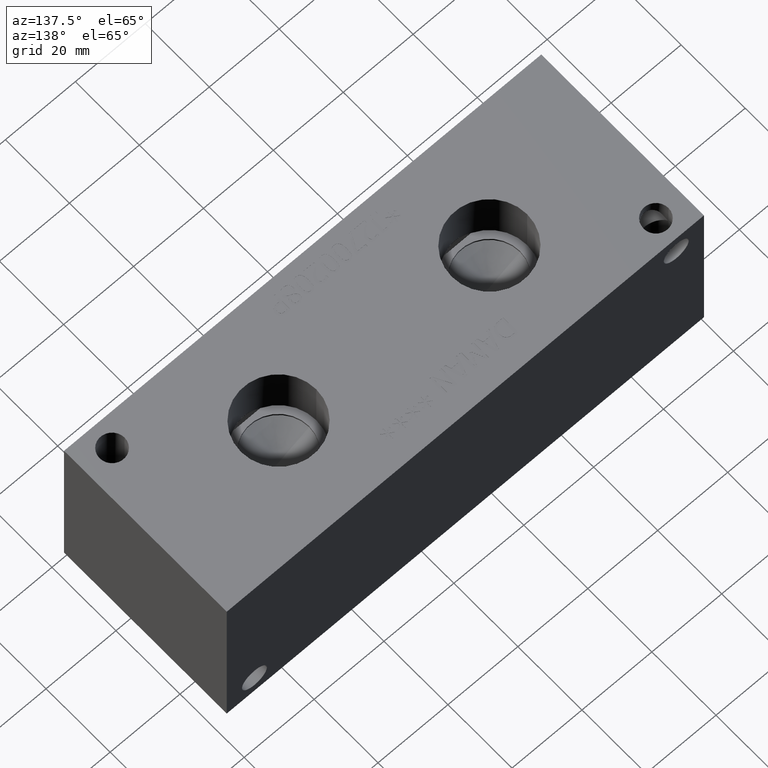
[diagram: clean part render]
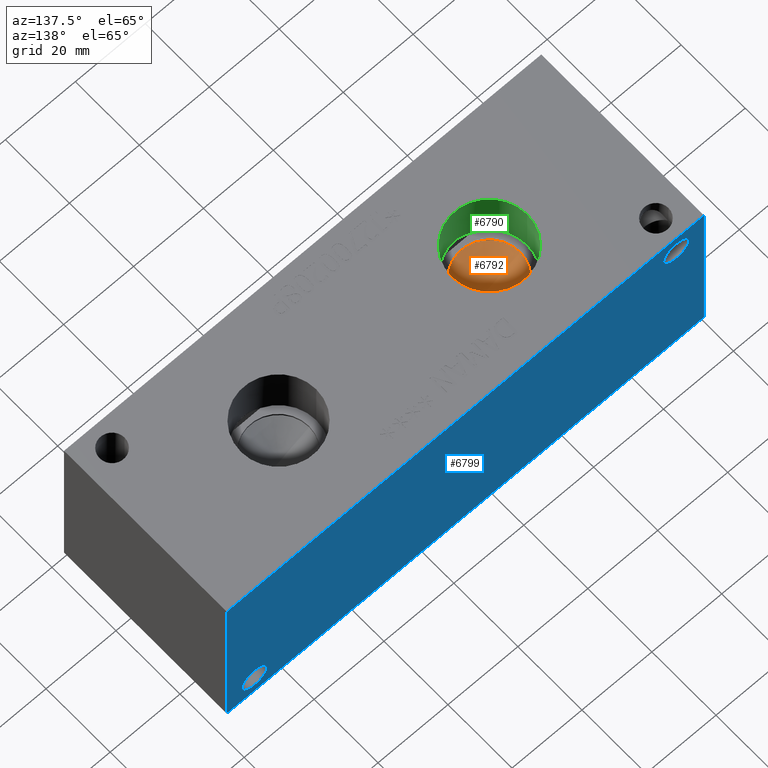
[diagram: same view with three faces highlighted in distinct colors, each labeled with its STEP entity id]
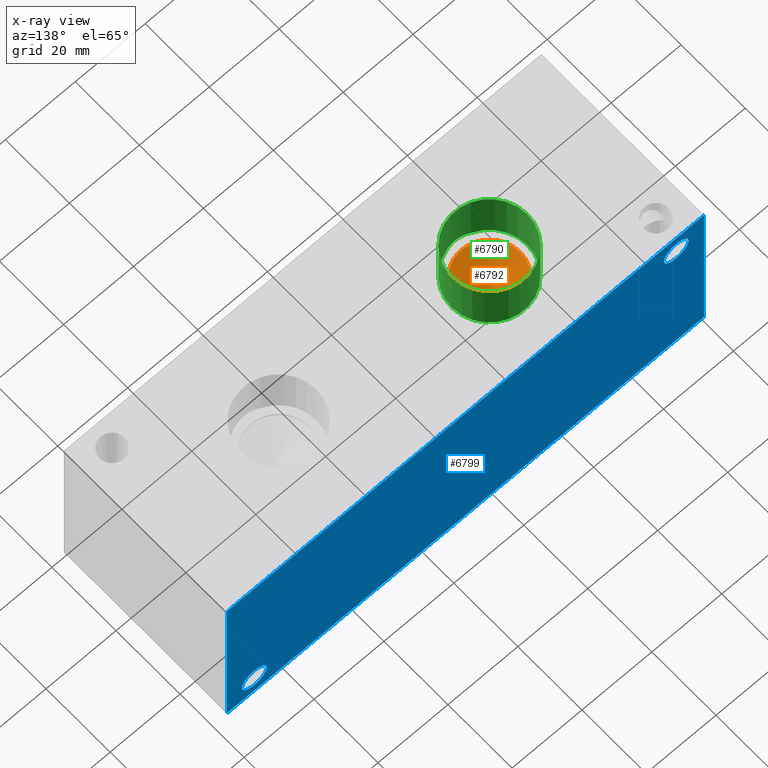
[diagram: x-ray of the same camera — body ghosted, the three highlighted faces saturated]
A machine part, auxiliary view with three faces highlighted in distinct colors.
The next image is the same camera in x-ray (body ghosted, the three faces saturated) — at least one of them is partly hidden behind the body in this view.
Their STEP definitions:

[orange] entity #6792 — the highlighted conical surface has half-angle 60 deg.
#18=CONICAL_SURFACE('',#7111,4.3688,1.0471975511966);
#102=CIRCLE('',#7112,8.7376);
#103=CIRCLE('',#7113,8.7376);
#702=FACE_OUTER_BOUND('',#1079,.T.);
#1079=EDGE_LOOP('',(#6005,#6006,#6007,#6008));
#1762=LINE('',#11562,#2433);
#2433=VECTOR('',#8380,4.3688);
#3253=VERTEX_POINT('',#11558);
#3254=VERTEX_POINT('',#11559);
#3255=VERTEX_POINT('',#11561);
#4182=EDGE_CURVE('',#3253,#3254,#102,.T.);
#4183=EDGE_CURVE('',#3254,#3255,#1762,.T.);
#4184=EDGE_CURVE('',#3254,#3253,#103,.T.);
#6005=ORIENTED_EDGE('',*,*,#4182,.T.);
#6006=ORIENTED_EDGE('',*,*,#4183,.T.);
#6007=ORIENTED_EDGE('',*,*,#4183,.F.);
#6008=ORIENTED_EDGE('',*,*,#4184,.T.);
#6792=ADVANCED_FACE('',(#702),#18,.F.);
#7111=AXIS2_PLACEMENT_3D('',#11557,#8376,#8377);
#7112=AXIS2_PLACEMENT_3D('',#11560,#8378,#8379);
#7113=AXIS2_PLACEMENT_3D('',#11563,#8381,#8382);
#8376=DIRECTION('center_axis',(0.,0.,1.));
#8377=DIRECTION('ref_axis',(1.,0.,0.));
#8378=DIRECTION('center_axis',(0.,0.,1.));
#8379=DIRECTION('ref_axis',(1.,0.,0.));
#8380=DIRECTION('',(0.866025403784439,1.06057523872491E-16,-0.5));
#8381=DIRECTION('center_axis',(0.,0.,1.));
#8382=DIRECTION('ref_axis',(1.,0.,0.));
#11557=CARTESIAN_POINT('Origin',(38.1,25.4,32.4062021439644));
#11558=CARTESIAN_POINT('',(46.8376,25.4,34.92853));
#11559=CARTESIAN_POINT('',(29.3624,25.4,34.92853));
#11560=CARTESIAN_POINT('Origin',(38.1,25.4,34.92853));
#11561=CARTESIAN_POINT('',(38.1,25.4,29.8838742879287));
#11562=CARTESIAN_POINT('',(33.7312,25.4,32.4062021439644));
#11563=CARTESIAN_POINT('Origin',(38.1,25.4,34.92853));

[blue] entity #6799 — the highlighted planar face has unit normal (0, 1, 0).
#86=CIRCLE('',#7077,3.5687);
#89=CIRCLE('',#7086,3.5687);
#146=FACE_BOUND('',#1089,.T.);
#147=FACE_BOUND('',#1090,.T.);
#368=PLANE('',#7124);
#709=FACE_OUTER_BOUND('',#1088,.T.);
#1088=EDGE_LOOP('',(#6035,#6036,#6037,#6038));
#1089=EDGE_LOOP('',(#6039));
#1090=EDGE_LOOP('',(#6040));
#1357=LINE('',#10476,#2028);
#1768=LINE('',#11586,#2439);
#1769=LINE('',#11589,#2440);
#1770=LINE('',#11590,#2441);
#2028=VECTOR('',#7515,10.);
#2439=VECTOR('',#8408,10.);
#2440=VECTOR('',#8411,10.);
#2441=VECTOR('',#8412,10.);
#2931=VERTEX_POINT('',#10473);
#2932=VERTEX_POINT('',#10475);
#3235=VERTEX_POINT('',#11490);
#3240=VERTEX_POINT('',#11506);
#3261=VERTEX_POINT('',#11582);
#3263=VERTEX_POINT('',#11588);
#3699=EDGE_CURVE('',#2931,#2932,#1357,.T.);
#4148=EDGE_CURVE('',#3235,#3235,#86,.T.);
#4157=EDGE_CURVE('',#3240,#3240,#89,.T.);
#4194=EDGE_CURVE('',#3261,#2932,#1768,.T.);
#4195=EDGE_CURVE('',#3263,#3261,#1769,.T.);
#4196=EDGE_CURVE('',#3263,#2931,#1770,.T.);
#6035=ORIENTED_EDGE('',*,*,#4195,.T.);
#6036=ORIENTED_EDGE('',*,*,#4194,.T.);
#6037=ORIENTED_EDGE('',*,*,#3699,.F.);
#6038=ORIENTED_EDGE('',*,*,#4196,.F.);
#6039=ORIENTED_EDGE('',*,*,#4148,.T.);
#6040=ORIENTED_EDGE('',*,*,#4157,.T.);
#6799=ADVANCED_FACE('',(#709,#146,#147),#368,.T.);
#7077=AXIS2_PLACEMENT_3D('',#11492,#8294,#8295);
#7086=AXIS2_PLACEMENT_3D('',#11508,#8314,#8315);
#7124=AXIS2_PLACEMENT_3D('',#11587,#8409,#8410);
#7515=DIRECTION('',(-1.,0.,0.));
#8294=DIRECTION('center_axis',(0.,-1.,0.));
#8295=DIRECTION('ref_axis',(1.,0.,0.));
#8314=DIRECTION('center_axis',(0.,-1.,0.));
#8315=DIRECTION('ref_axis',(1.,0.,0.));
#8408=DIRECTION('',(0.,0.,1.));
#8409=DIRECTION('center_axis',(0.,1.,0.));
#8410=DIRECTION('ref_axis',(-1.,0.,0.));
#8411=DIRECTION('',(-1.,0.,0.));
#8412=DIRECTION('',(0.,0.,1.));
#10473=CARTESIAN_POINT('',(136.525,50.8,50.8));
#10475=CARTESIAN_POINT('',(0.,50.8,50.8));
#10476=CARTESIAN_POINT('',(136.525,50.8,50.8));
#11490=CARTESIAN_POINT('',(4.3561,50.8,44.45));
#11492=CARTESIAN_POINT('Origin',(7.9248,50.8,44.45));
#11506=CARTESIAN_POINT('',(125.0315,50.8,6.35));
#11508=CARTESIAN_POINT('Origin',(128.6002,50.8,6.35));
#11582=CARTESIAN_POINT('',(0.,50.8,0.));
#11586=CARTESIAN_POINT('',(0.,50.8,0.));
#11587=CARTESIAN_POINT('Origin',(136.525,50.8,0.));
#11588=CARTESIAN_POINT('',(136.525,50.8,0.));
#11589=CARTESIAN_POINT('',(136.525,50.8,0.));
#11590=CARTESIAN_POINT('',(136.525,50.8,0.));

[green] entity #6790 — the highlighted cylindrical surface (bore or boss wall) has radius 10.795 mm, axis along (0, 0, 1).
#22=ELLIPSE('',#7059,15.2664354058176,10.795);
#48=CYLINDRICAL_SURFACE('',#7105,10.795);
#54=CIRCLE('',#6885,10.795);
#55=CIRCLE('',#6886,10.795);
#98=CIRCLE('',#7106,10.795);
#99=CIRCLE('',#7107,10.795);
#700=FACE_OUTER_BOUND('',#1077,.T.);
#1077=EDGE_LOOP('',(#5991,#5992,#5993,#5994,#5995,#5996,#5997));
#1760=LINE('',#11549,#2431);
#2431=VECTOR('',#8364,10.795);
#2935=VERTEX_POINT('',#10482);
#2936=VERTEX_POINT('',#10483);
#3224=VERTEX_POINT('',#11458);
#3225=VERTEX_POINT('',#11460);
#3251=VERTEX_POINT('',#11548);
#3703=EDGE_CURVE('',#2935,#2936,#54,.T.);
#3704=EDGE_CURVE('',#2936,#2935,#55,.T.);
#4130=EDGE_CURVE('',#3225,#3224,#22,.T.);
#4176=EDGE_CURVE('',#2936,#3251,#1760,.T.);
#4177=EDGE_CURVE('',#3225,#3251,#98,.T.);
#4178=EDGE_CURVE('',#3251,#3224,#99,.T.);
#5991=ORIENTED_EDGE('',*,*,#3703,.F.);
#5992=ORIENTED_EDGE('',*,*,#3704,.F.);
#5993=ORIENTED_EDGE('',*,*,#4176,.T.);
#5994=ORIENTED_EDGE('',*,*,#4177,.F.);
#5995=ORIENTED_EDGE('',*,*,#4130,.T.);
#5996=ORIENTED_EDGE('',*,*,#4178,.F.);
#5997=ORIENTED_EDGE('',*,*,#4176,.F.);
#6790=ADVANCED_FACE('',(#700),#48,.F.);
#6885=AXIS2_PLACEMENT_3D('',#10484,#7521,#7522);
#6886=AXIS2_PLACEMENT_3D('',#10485,#7523,#7524);
#7059=AXIS2_PLACEMENT_3D('',#11461,#8255,#8256);
#7105=AXIS2_PLACEMENT_3D('',#11547,#8362,#8363);
#7106=AXIS2_PLACEMENT_3D('',#11550,#8365,#8366);
#7107=AXIS2_PLACEMENT_3D('',#11551,#8367,#8368);
#7521=DIRECTION('center_axis',(0.,0.,-1.));
#7522=DIRECTION('ref_axis',(1.,0.,0.));
#7523=DIRECTION('center_axis',(0.,0.,-1.));
#7524=DIRECTION('ref_axis',(1.,0.,0.));
#8255=DIRECTION('center_axis',(0.,-0.707106781186548,-0.707106781186547));
#8256=DIRECTION('ref_axis',(0.,-0.707106781186547,0.707106781186548));
#8362=DIRECTION('center_axis',(0.,0.,1.));
#8363=DIRECTION('ref_axis',(1.,0.,0.));
#8364=DIRECTION('',(0.,0.,-1.));
#8365=DIRECTION('center_axis',(0.,0.,1.));
#8366=DIRECTION('ref_axis',(1.,0.,0.));
#8367=DIRECTION('center_axis',(0.,0.,1.));
#8368=DIRECTION('ref_axis',(1.,0.,0.));
#10482=CARTESIAN_POINT('',(48.895,25.4,50.8));
#10483=CARTESIAN_POINT('',(27.305,25.4,50.8));
#10484=CARTESIAN_POINT('Origin',(38.1,25.4,50.8));
#10485=CARTESIAN_POINT('Origin',(38.1,25.4,50.8));
#11458=CARTESIAN_POINT('',(34.116165666095,15.367,35.433));
#11460=CARTESIAN_POINT('',(42.083834333905,15.367,35.433));
#11461=CARTESIAN_POINT('Origin',(38.1,25.4,25.4));
#11547=CARTESIAN_POINT('Origin',(38.1,25.4,43.1165));
#11548=CARTESIAN_POINT('',(27.305,25.4,35.433));
#11549=CARTESIAN_POINT('',(27.305,25.4,43.1165));
#11550=CARTESIAN_POINT('Origin',(38.1,25.4,35.433));
#11551=CARTESIAN_POINT('Origin',(38.1,25.4,35.433));